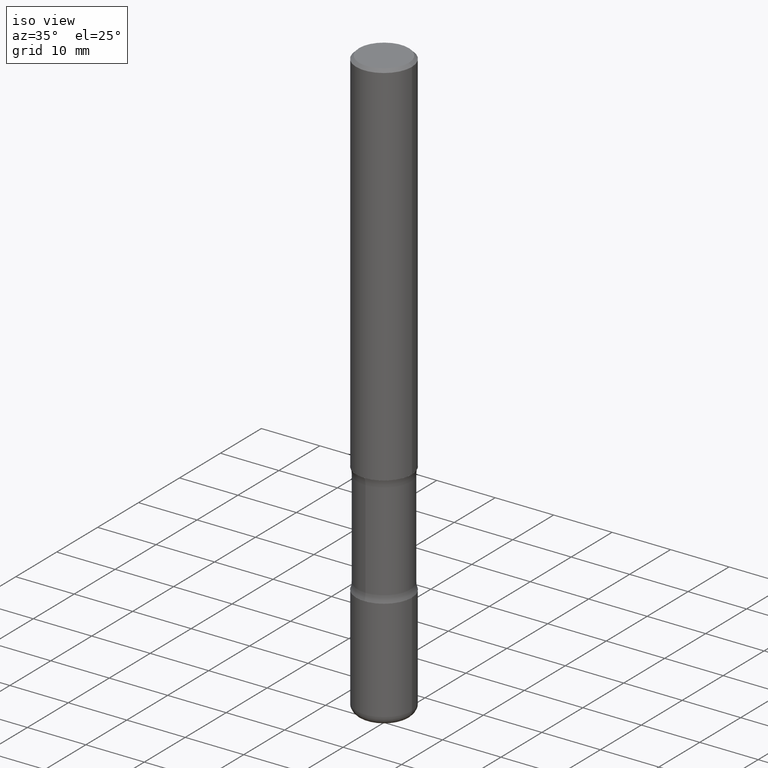
[diagram: clean part render]
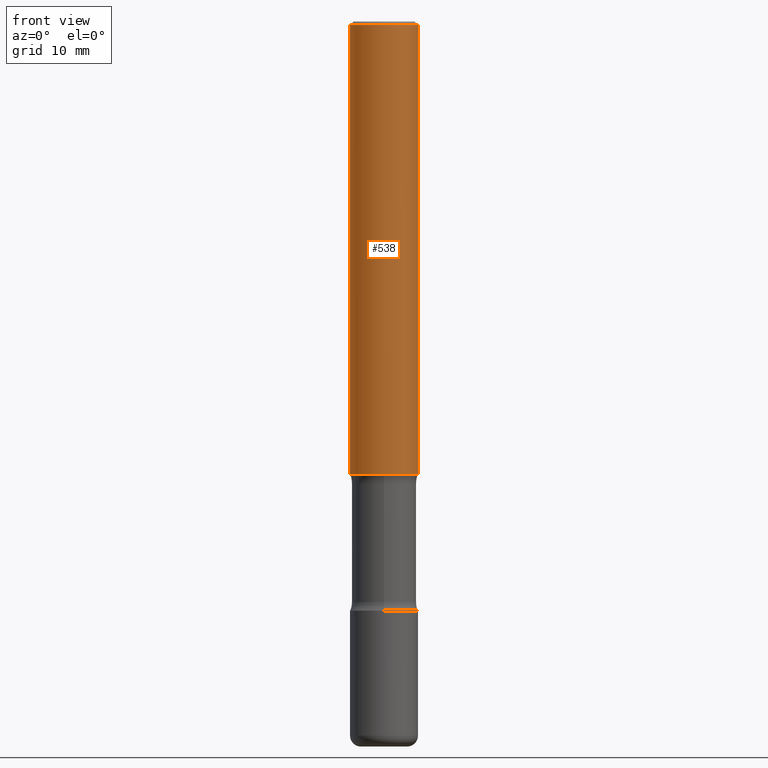
[diagram: tour spotlight — one face highlighted and labeled with its STEP entity id]
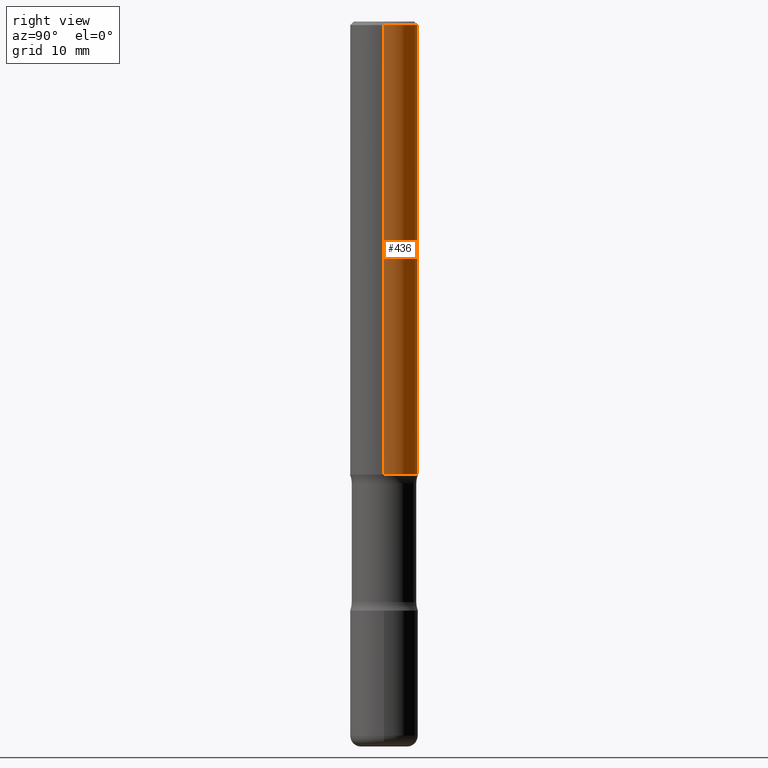
[diagram: tour spotlight — one face highlighted and labeled with its STEP entity id]
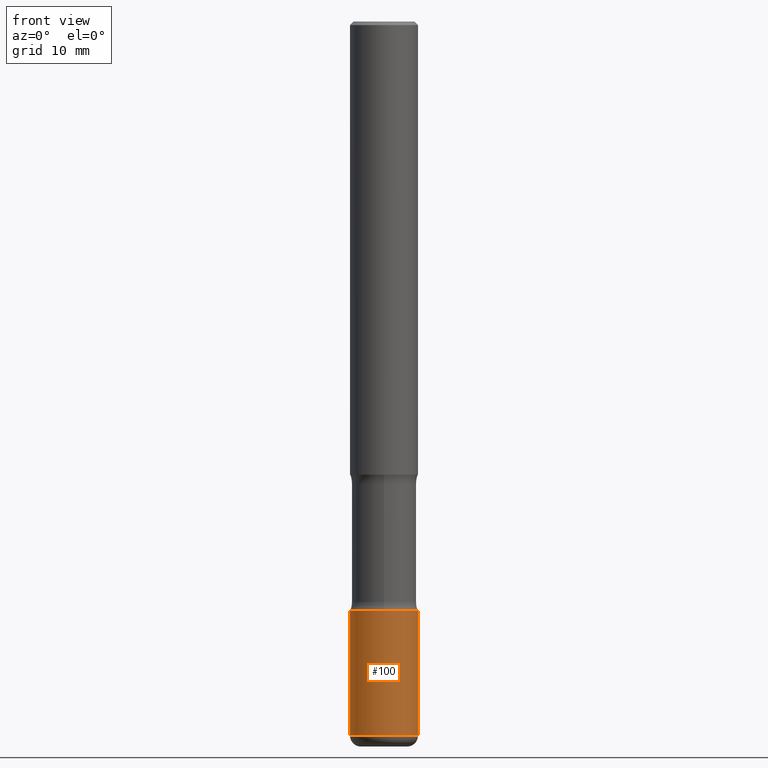
[diagram: tour spotlight — one face highlighted and labeled with its STEP entity id]
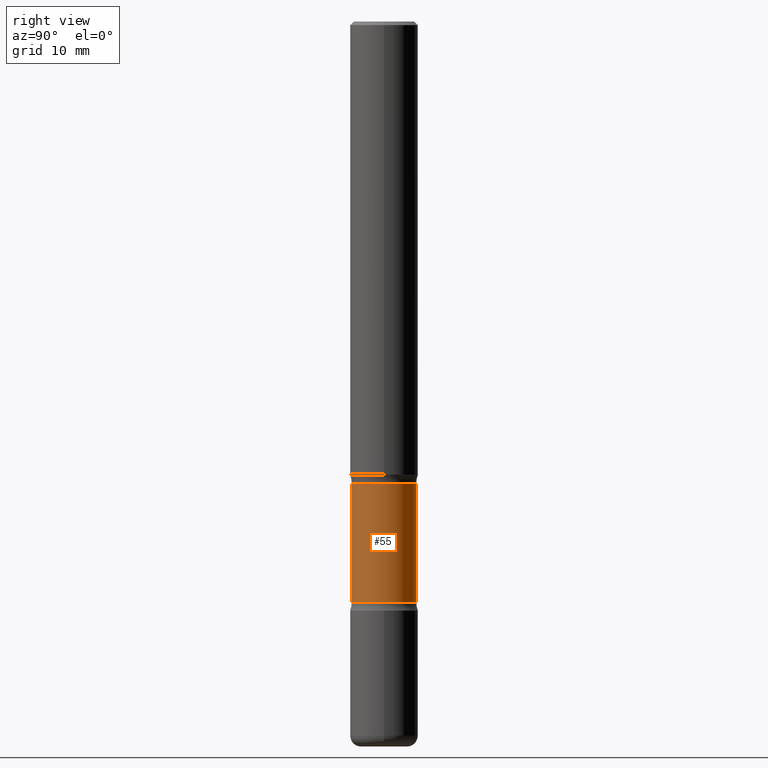
[diagram: tour spotlight — one face highlighted and labeled with its STEP entity id]
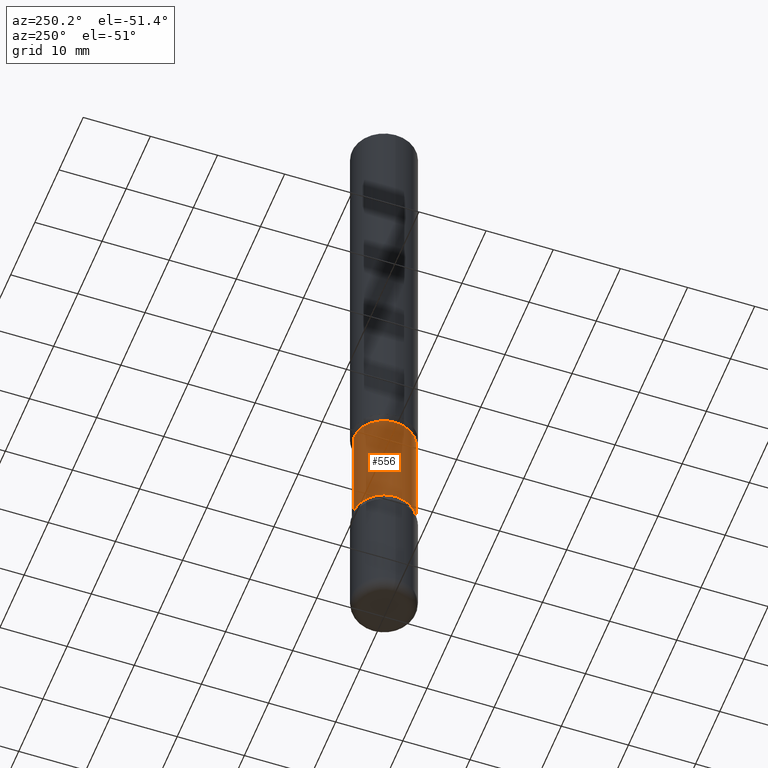
[diagram: tour spotlight — one face highlighted and labeled with its STEP entity id]
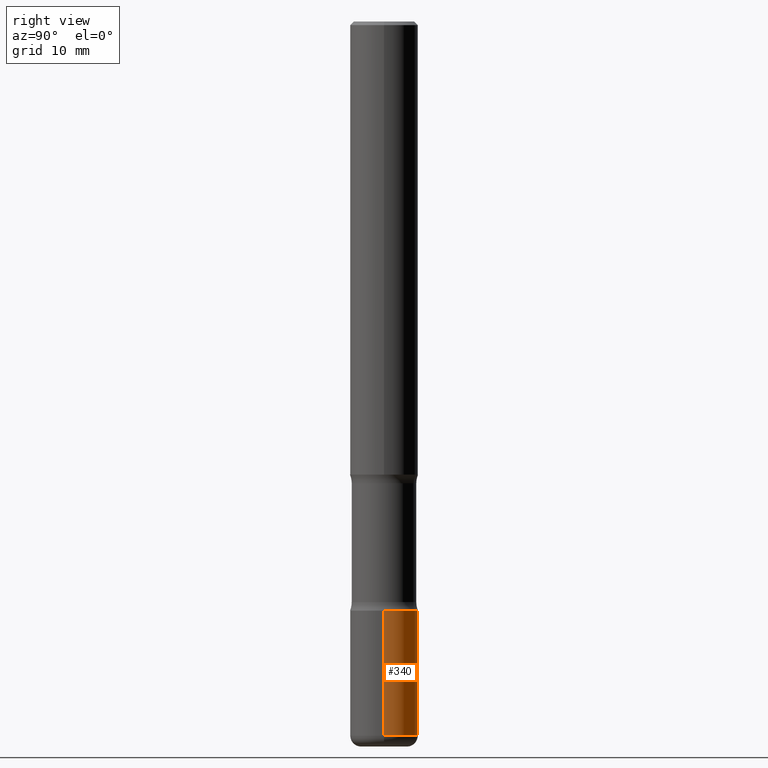
[diagram: tour spotlight — one face highlighted and labeled with its STEP entity id]
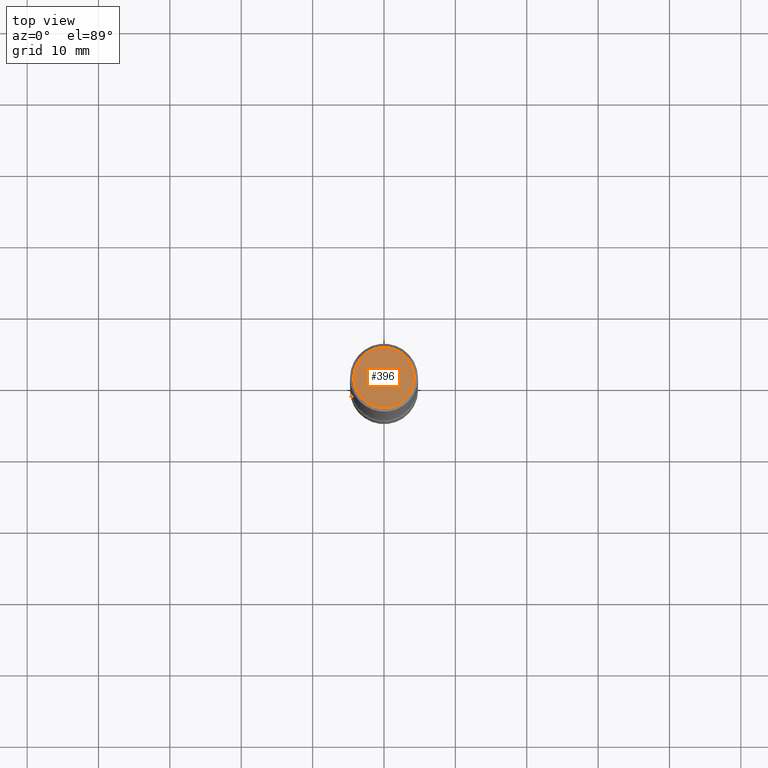
[diagram: tour spotlight — one face highlighted and labeled with its STEP entity id]
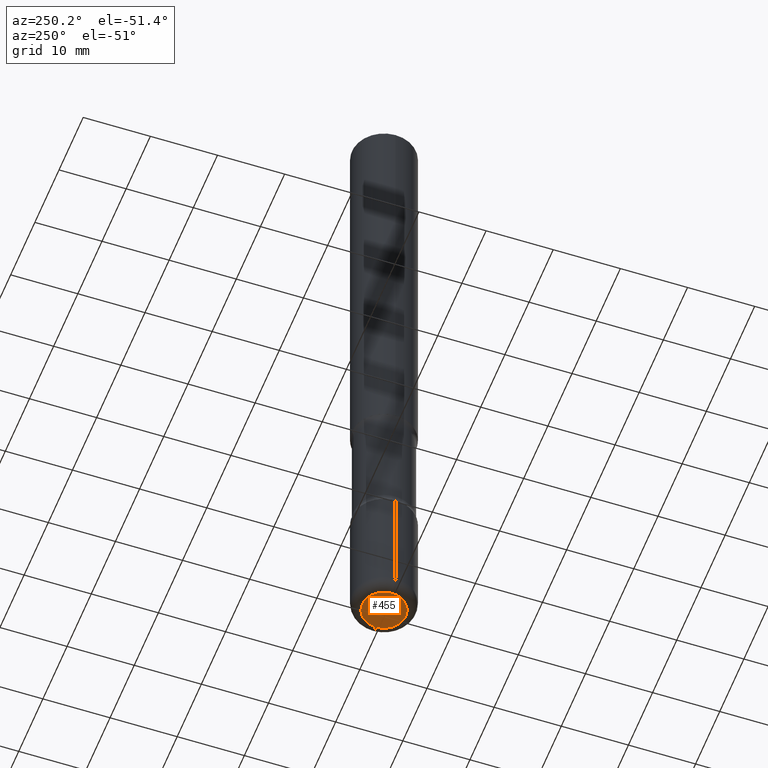
[diagram: tour spotlight — one face highlighted and labeled with its STEP entity id]
A machine part: a face-by-face anatomy tour. The part has 20 B-rep faces; the first image is the clean iso view, then the 8 largest visible faces are spotlighted one at a time (largest first), each with its STEP entity span.

Face 1 — front view, entity #538. In plain terms, the highlighted cylindrical surface (edge-blend (fillet) strip) has radius 4.7625 mm, axis along (-0, 0, 1).
Definition (entity closure, byte-faithful):
#11 = CARTESIAN_POINT ( 'NONE',  ( 0.1875000000000000278, -1.309305502066175008E-15, 9.142831454617381013E-30 ) ) ;
#18 = ORIENTED_EDGE ( 'NONE', *, *, #34, .F. ) ;
#34 = EDGE_CURVE ( 'NONE', #316, #446, #451, .T. ) ;
#43 = DIRECTION ( 'NONE',  ( -2.445468806185136597E-29, 3.491481338843145583E-15, 1.000000000000000000 ) ) ;
#49 = ORIENTED_EDGE ( 'NONE', *, *, #352, .T. ) ;
#68 = CARTESIAN_POINT ( 'NONE',  ( 0.1875000000000001110, -1.003800884917403995E-14, -2.500000000000000000 ) ) ;
#70 = VECTOR ( 'NONE', #527, 39.37007874015748143 ) ;
#90 = EDGE_LOOP ( 'NONE', ( #18, #437, #49, #448 ) ) ;
#123 = FACE_OUTER_BOUND ( 'NONE', #90, .T. ) ;
#131 = EDGE_CURVE ( 'NONE', #446, #322, #490, .T. ) ;
#178 = CYLINDRICAL_SURFACE ( 'NONE', #535, 0.1875000000000000278 ) ;
#187 = CARTESIAN_POINT ( 'NONE',  ( 0.1874999999999999167, -1.356173001359024677E-15, -0.02000000000000006981 ) ) ;
#197 = AXIS2_PLACEMENT_3D ( 'NONE', #374, #464, #258 ) ;
#231 = LINE ( 'NONE', #11, #70 ) ;
#235 = CARTESIAN_POINT ( 'NONE',  ( 6.113672015462842613E-29, -8.728703347107864943E-15, -2.500000000000000000 ) ) ;
#239 = CARTESIAN_POINT ( 'NONE',  ( -0.1875000000000000278, 1.332267629550188046E-15, -9.223003294227947991E-30 ) ) ;
#248 = CARTESIAN_POINT ( 'NONE',  ( -0.1874999999999999167, 1.239475875289311118E-15, -0.02000000000000006981 ) ) ;
#258 = DIRECTION ( 'NONE',  ( 1.000000000000000000, -6.982962677686265922E-15, 0.000000000000000000 ) ) ;
#261 = DIRECTION ( 'NONE',  ( 1.000000000000000000, -6.982962677686263555E-15, 0.000000000000000000 ) ) ;
#263 = DIRECTION ( 'NONE',  ( 1.000000000000000000, -6.982962677686265922E-15, 4.876176775795935793E-29 ) ) ;
#297 = AXIS2_PLACEMENT_3D ( 'NONE', #235, #43, #261 ) ;
#299 = DIRECTION ( 'NONE',  ( -2.445468806185136597E-29, 3.491481338843145583E-15, 1.000000000000000000 ) ) ;
#304 = EDGE_CURVE ( 'NONE', #316, #485, #507, .T. ) ;
#316 = VERTEX_POINT ( 'NONE', #359 ) ;
#322 = VERTEX_POINT ( 'NONE', #187 ) ;
#341 = CARTESIAN_POINT ( 'NONE',  ( 0.000000000000000000, 0.000000000000000000, 0.000000000000000000 ) ) ;
#352 = EDGE_CURVE ( 'NONE', #485, #322, #231, .T. ) ;
#359 = CARTESIAN_POINT ( 'NONE',  ( -0.1875000000000000833, -3.066998857392172722E-15, -2.500000000000000000 ) ) ;
#363 = DIRECTION ( 'NONE',  ( -2.445468806185136877E-29, 3.491481338843145188E-15, 1.000000000000000000 ) ) ;
#374 = CARTESIAN_POINT ( 'NONE',  ( 4.890937612370289799E-31, -6.982962677686315028E-17, -0.02000000000000006981 ) ) ;
#411 = VECTOR ( 'NONE', #363, 39.37007874015748143 ) ;
#437 = ORIENTED_EDGE ( 'NONE', *, *, #304, .T. ) ;
#446 = VERTEX_POINT ( 'NONE', #248 ) ;
#448 = ORIENTED_EDGE ( 'NONE', *, *, #131, .F. ) ;
#451 = LINE ( 'NONE', #239, #411 ) ;
#464 = DIRECTION ( 'NONE',  ( -2.445468806185136597E-29, 3.491481338843145583E-15, 1.000000000000000000 ) ) ;
#485 = VERTEX_POINT ( 'NONE', #68 ) ;
#490 = CIRCLE ( 'NONE', #197, 0.1874999999999999167 ) ;
#507 = CIRCLE ( 'NONE', #297, 0.1875000000000001110 ) ;
#527 = DIRECTION ( 'NONE',  ( -2.445468806185136877E-29, 3.491481338843145188E-15, 1.000000000000000000 ) ) ;
#535 = AXIS2_PLACEMENT_3D ( 'NONE', #341, #299, #263 ) ;
#538 = ADVANCED_FACE ( 'NONE', ( #123 ), #178, .T. ) ;

Face 2 — right view, entity #436. In plain terms, the highlighted cylindrical surface (edge-blend (fillet) strip) has radius 4.7625 mm, axis along (-0, 0, 1).
Definition (entity closure, byte-faithful):
#11 = CARTESIAN_POINT ( 'NONE',  ( 0.1875000000000000278, -1.309305502066175008E-15, 9.142831454617381013E-30 ) ) ;
#20 = EDGE_CURVE ( 'NONE', #485, #316, #93, .T. ) ;
#21 = EDGE_LOOP ( 'NONE', ( #264, #350, #227, #278 ) ) ;
#31 = CARTESIAN_POINT ( 'NONE',  ( 4.890937612370289799E-31, -6.982962677686315028E-17, -0.02000000000000006981 ) ) ;
#34 = EDGE_CURVE ( 'NONE', #316, #446, #451, .T. ) ;
#58 = AXIS2_PLACEMENT_3D ( 'NONE', #250, #112, #356 ) ;
#66 = CARTESIAN_POINT ( 'NONE',  ( 0.000000000000000000, 0.000000000000000000, 0.000000000000000000 ) ) ;
#68 = CARTESIAN_POINT ( 'NONE',  ( 0.1875000000000001110, -1.003800884917403995E-14, -2.500000000000000000 ) ) ;
#70 = VECTOR ( 'NONE', #527, 39.37007874015748143 ) ;
#93 = CIRCLE ( 'NONE', #58, 0.1875000000000001110 ) ;
#112 = DIRECTION ( 'NONE',  ( -2.445468806185136597E-29, 3.491481338843145583E-15, 1.000000000000000000 ) ) ;
#128 = CIRCLE ( 'NONE', #287, 0.1874999999999999167 ) ;
#155 = DIRECTION ( 'NONE',  ( 1.000000000000000000, -6.982962677686265922E-15, 4.876176775795935793E-29 ) ) ;
#160 = DIRECTION ( 'NONE',  ( 1.000000000000000000, -6.982962677686265922E-15, 0.000000000000000000 ) ) ;
#187 = CARTESIAN_POINT ( 'NONE',  ( 0.1874999999999999167, -1.356173001359024677E-15, -0.02000000000000006981 ) ) ;
#196 = DIRECTION ( 'NONE',  ( -2.445468806185136597E-29, 3.491481338843145583E-15, 1.000000000000000000 ) ) ;
#227 = ORIENTED_EDGE ( 'NONE', *, *, #449, .F. ) ;
#231 = LINE ( 'NONE', #11, #70 ) ;
#239 = CARTESIAN_POINT ( 'NONE',  ( -0.1875000000000000278, 1.332267629550188046E-15, -9.223003294227947991E-30 ) ) ;
#241 = DIRECTION ( 'NONE',  ( -2.445468806185136597E-29, 3.491481338843145583E-15, 1.000000000000000000 ) ) ;
#248 = CARTESIAN_POINT ( 'NONE',  ( -0.1874999999999999167, 1.239475875289311118E-15, -0.02000000000000006981 ) ) ;
#250 = CARTESIAN_POINT ( 'NONE',  ( 6.113672015462842613E-29, -8.728703347107864943E-15, -2.500000000000000000 ) ) ;
#264 = ORIENTED_EDGE ( 'NONE', *, *, #20, .T. ) ;
#278 = ORIENTED_EDGE ( 'NONE', *, *, #352, .F. ) ;
#279 = AXIS2_PLACEMENT_3D ( 'NONE', #66, #196, #155 ) ;
#287 = AXIS2_PLACEMENT_3D ( 'NONE', #31, #241, #160 ) ;
#290 = CYLINDRICAL_SURFACE ( 'NONE', #279, 0.1875000000000000278 ) ;
#292 = FACE_OUTER_BOUND ( 'NONE', #21, .T. ) ;
#316 = VERTEX_POINT ( 'NONE', #359 ) ;
#322 = VERTEX_POINT ( 'NONE', #187 ) ;
#350 = ORIENTED_EDGE ( 'NONE', *, *, #34, .T. ) ;
#352 = EDGE_CURVE ( 'NONE', #485, #322, #231, .T. ) ;
#356 = DIRECTION ( 'NONE',  ( 1.000000000000000000, -6.982962677686263555E-15, 0.000000000000000000 ) ) ;
#359 = CARTESIAN_POINT ( 'NONE',  ( -0.1875000000000000833, -3.066998857392172722E-15, -2.500000000000000000 ) ) ;
#363 = DIRECTION ( 'NONE',  ( -2.445468806185136877E-29, 3.491481338843145188E-15, 1.000000000000000000 ) ) ;
#411 = VECTOR ( 'NONE', #363, 39.37007874015748143 ) ;
#436 = ADVANCED_FACE ( 'NONE', ( #292 ), #290, .T. ) ;
#446 = VERTEX_POINT ( 'NONE', #248 ) ;
#449 = EDGE_CURVE ( 'NONE', #322, #446, #128, .T. ) ;
#451 = LINE ( 'NONE', #239, #411 ) ;
#485 = VERTEX_POINT ( 'NONE', #68 ) ;
#527 = DIRECTION ( 'NONE',  ( -2.445468806185136877E-29, 3.491481338843145188E-15, 1.000000000000000000 ) ) ;

Face 3 — front view, entity #100. In plain terms, the highlighted cylindrical surface (edge-blend (fillet) strip) has radius 4.7625 mm, axis along (-0, 0, 1).
Definition (entity closure, byte-faithful):
#16 = EDGE_LOOP ( 'NONE', ( #494, #25, #151, #400 ) ) ;
#25 = ORIENTED_EDGE ( 'NONE', *, *, #182, .T. ) ;
#27 = DIRECTION ( 'NONE',  ( 1.000000000000000000, -6.982962677686267499E-15, 0.000000000000000000 ) ) ;
#72 = CARTESIAN_POINT ( 'NONE',  ( 0.1875000000000001110, -1.506574197710817060E-14, -3.939999999999999947 ) ) ;
#75 = DIRECTION ( 'NONE',  ( 1.000000000000000000, -6.982962677686266711E-15, 4.876176775795935793E-29 ) ) ;
#81 = DIRECTION ( 'NONE',  ( -2.445468806185136597E-29, 3.491481338843145583E-15, 1.000000000000000000 ) ) ;
#100 = ADVANCED_FACE ( 'NONE', ( #124 ), #293, .T. ) ;
#124 = FACE_OUTER_BOUND ( 'NONE', #16, .T. ) ;
#139 = EDGE_CURVE ( 'NONE', #492, #306, #548, .T. ) ;
#143 = EDGE_CURVE ( 'NONE', #306, #517, #501, .T. ) ;
#151 = ORIENTED_EDGE ( 'NONE', *, *, #249, .T. ) ;
#157 = CARTESIAN_POINT ( 'NONE',  ( -0.1875000000000001110, -1.242416884549180617E-14, -3.939999999999999947 ) ) ;
#170 = DIRECTION ( 'NONE',  ( -2.445468806185136877E-29, 3.491481338843145188E-15, 1.000000000000000000 ) ) ;
#182 = EDGE_CURVE ( 'NONE', #492, #531, #307, .T. ) ;
#185 = CARTESIAN_POINT ( 'NONE',  ( 0.1875000000000001110, -1.309305502066175797E-15, 9.142831454617385217E-30 ) ) ;
#189 = VECTOR ( 'NONE', #170, 39.37007874015748143 ) ;
#208 = AXIS2_PLACEMENT_3D ( 'NONE', #209, #81, #75 ) ;
#209 = CARTESIAN_POINT ( 'NONE',  ( 0.000000000000000000, 0.000000000000000000, 0.000000000000000000 ) ) ;
#225 = AXIS2_PLACEMENT_3D ( 'NONE', #379, #510, #291 ) ;
#228 = LINE ( 'NONE', #185, #372 ) ;
#249 = EDGE_CURVE ( 'NONE', #531, #517, #228, .T. ) ;
#291 = DIRECTION ( 'NONE',  ( 1.000000000000000000, -6.982962677686269866E-15, 0.000000000000000000 ) ) ;
#293 = CYLINDRICAL_SURFACE ( 'NONE', #208, 0.1875000000000001110 ) ;
#306 = VERTEX_POINT ( 'NONE', #488 ) ;
#307 = CIRCLE ( 'NONE', #434, 0.1875000000000001388 ) ;
#329 = CARTESIAN_POINT ( 'NONE',  ( -0.1875000000000001110, 1.332267629550188637E-15, -9.223003294227953596E-30 ) ) ;
#372 = VECTOR ( 'NONE', #520, 39.37007874015748143 ) ;
#379 = CARTESIAN_POINT ( 'NONE',  ( 7.947773620101696182E-29, -1.134731435124022600E-14, -3.250000000000000444 ) ) ;
#400 = ORIENTED_EDGE ( 'NONE', *, *, #143, .F. ) ;
#424 = CARTESIAN_POINT ( 'NONE',  ( 9.635147096369438236E-29, -1.375643647504199401E-14, -3.939999999999999947 ) ) ;
#434 = AXIS2_PLACEMENT_3D ( 'NONE', #424, #546, #27 ) ;
#488 = CARTESIAN_POINT ( 'NONE',  ( -0.1875000000000000833, -1.121960778359092137E-14, -3.250000000000000444 ) ) ;
#492 = VERTEX_POINT ( 'NONE', #157 ) ;
#494 = ORIENTED_EDGE ( 'NONE', *, *, #139, .F. ) ;
#501 = CIRCLE ( 'NONE', #225, 0.1875000000000000833 ) ;
#510 = DIRECTION ( 'NONE',  ( -2.445468806185136597E-29, 3.491481338843145583E-15, 1.000000000000000000 ) ) ;
#517 = VERTEX_POINT ( 'NONE', #539 ) ;
#520 = DIRECTION ( 'NONE',  ( -2.445468806185136877E-29, 3.491481338843145188E-15, 1.000000000000000000 ) ) ;
#531 = VERTEX_POINT ( 'NONE', #72 ) ;
#539 = CARTESIAN_POINT ( 'NONE',  ( 0.1875000000000000833, -1.265661985330640259E-14, -3.250000000000000444 ) ) ;
#546 = DIRECTION ( 'NONE',  ( -2.445468806185136597E-29, 3.491481338843145583E-15, 1.000000000000000000 ) ) ;
#548 = LINE ( 'NONE', #329, #189 ) ;

Face 4 — right view, entity #55. In plain terms, the highlighted cylindrical surface (edge-blend (fillet) strip) has radius 4.5244 mm, axis along (0, -0, -1).
Definition (entity closure, byte-faithful):
#17 = CARTESIAN_POINT ( 'NONE',  ( 6.150289227201164007E-29, -9.008429421428009851E-15, -2.547495887979908780 ) ) ;
#39 = DIRECTION ( 'NONE',  ( 6.982962677686266711E-15, 1.000000000000000000, -3.067338098149349089E-15 ) ) ;
#55 = ADVANCED_FACE ( 'NONE', ( #133 ), #381, .T. ) ;
#77 = EDGE_CURVE ( 'NONE', #497, #180, #122, .T. ) ;
#95 = ORIENTED_EDGE ( 'NONE', *, *, #512, .F. ) ;
#111 = CARTESIAN_POINT ( 'NONE',  ( 7.826246762236988201E-29, -1.118918372292999451E-14, -3.202504112020091664 ) ) ;
#118 = AXIS2_PLACEMENT_3D ( 'NONE', #296, #173, #39 ) ;
#122 = LINE ( 'NONE', #212, #401 ) ;
#133 = FACE_OUTER_BOUND ( 'NONE', #269, .T. ) ;
#141 = CARTESIAN_POINT ( 'NONE',  ( 1.243840226962943961E-15, 0.1781249999999887368, -3.202504112020092553 ) ) ;
#172 = CARTESIAN_POINT ( 'NONE',  ( 1.243840226962964471E-15, 0.1781249999999861278, -4.000000000000000888 ) ) ;
#173 = DIRECTION ( 'NONE',  ( 2.558681667686983511E-29, -3.329354077496592524E-15, -1.000000000000000000 ) ) ;
#180 = VERTEX_POINT ( 'NONE', #550 ) ;
#194 = DIRECTION ( 'NONE',  ( 2.558681667686983511E-29, -3.329354077496592524E-15, -1.000000000000000000 ) ) ;
#199 = VECTOR ( 'NONE', #465, 39.37007874015748143 ) ;
#212 = CARTESIAN_POINT ( 'NONE',  ( -1.222026205852954821E-15, -0.1781250000000138001, -3.999999999999999556 ) ) ;
#243 = CARTESIAN_POINT ( 'NONE',  ( -1.254184790217547253E-15, -0.1781250000000089706, -2.547495887979908336 ) ) ;
#269 = EDGE_LOOP ( 'NONE', ( #388, #407, #95, #280 ) ) ;
#275 = DIRECTION ( 'NONE',  ( 6.982962677686266711E-15, 1.000000000000000000, -3.067338098149349089E-15 ) ) ;
#280 = ORIENTED_EDGE ( 'NONE', *, *, #549, .F. ) ;
#281 = DIRECTION ( 'NONE',  ( 2.558681667686983511E-29, -3.329354077496592524E-15, -1.000000000000000000 ) ) ;
#296 = CARTESIAN_POINT ( 'NONE',  ( 9.866784870866931853E-29, -1.384432990936266734E-14, -4.000000000000000000 ) ) ;
#308 = VERTEX_POINT ( 'NONE', #141 ) ;
#327 = CIRCLE ( 'NONE', #534, 0.1781249999999999500 ) ;
#343 = EDGE_CURVE ( 'NONE', #513, #497, #327, .T. ) ;
#381 = CYLINDRICAL_SURFACE ( 'NONE', #118, 0.1781249999999999500 ) ;
#386 = LINE ( 'NONE', #172, #199 ) ;
#388 = ORIENTED_EDGE ( 'NONE', *, *, #343, .T. ) ;
#401 = VECTOR ( 'NONE', #458, 39.37007874015748143 ) ;
#407 = ORIENTED_EDGE ( 'NONE', *, *, #77, .T. ) ;
#412 = CARTESIAN_POINT ( 'NONE',  ( 1.243840226962927197E-15, 0.1781249999999909572, -2.547495887979909224 ) ) ;
#458 = DIRECTION ( 'NONE',  ( 2.558681667686983511E-29, -3.329354077496592524E-15, -1.000000000000000000 ) ) ;
#463 = AXIS2_PLACEMENT_3D ( 'NONE', #111, #281, #503 ) ;
#465 = DIRECTION ( 'NONE',  ( 2.558681667686983511E-29, -3.329354077496592524E-15, -1.000000000000000000 ) ) ;
#474 = CIRCLE ( 'NONE', #463, 0.1781249999999999223 ) ;
#497 = VERTEX_POINT ( 'NONE', #243 ) ;
#503 = DIRECTION ( 'NONE',  ( 6.982962677686265133E-15, 1.000000000000000000, -3.067338098149349483E-15 ) ) ;
#512 = EDGE_CURVE ( 'NONE', #308, #180, #474, .T. ) ;
#513 = VERTEX_POINT ( 'NONE', #412 ) ;
#534 = AXIS2_PLACEMENT_3D ( 'NONE', #17, #194, #275 ) ;
#549 = EDGE_CURVE ( 'NONE', #513, #308, #386, .T. ) ;
#550 = CARTESIAN_POINT ( 'NONE',  ( -1.254184790217529307E-15, -0.1781250000000111355, -3.202504112020091220 ) ) ;

Face 5 — auxiliary view, entity #556. In plain terms, the highlighted cylindrical surface (edge-blend (fillet) strip) has radius 4.5244 mm, axis along (0, -0, -1).
Definition (entity closure, byte-faithful):
#47 = CIRCLE ( 'NONE', #382, 0.1781249999999999500 ) ;
#77 = EDGE_CURVE ( 'NONE', #497, #180, #122, .T. ) ;
#80 = DIRECTION ( 'NONE',  ( 6.982962677686266711E-15, 1.000000000000000000, -3.067338098149349089E-15 ) ) ;
#89 = EDGE_LOOP ( 'NONE', ( #117, #237, #247, #274 ) ) ;
#108 = AXIS2_PLACEMENT_3D ( 'NONE', #265, #294, #80 ) ;
#117 = ORIENTED_EDGE ( 'NONE', *, *, #77, .F. ) ;
#122 = LINE ( 'NONE', #212, #401 ) ;
#134 = FACE_OUTER_BOUND ( 'NONE', #89, .T. ) ;
#136 = AXIS2_PLACEMENT_3D ( 'NONE', #532, #351, #192 ) ;
#141 = CARTESIAN_POINT ( 'NONE',  ( 1.243840226962943961E-15, 0.1781249999999887368, -3.202504112020092553 ) ) ;
#145 = CIRCLE ( 'NONE', #136, 0.1781249999999999223 ) ;
#159 = EDGE_CURVE ( 'NONE', #497, #513, #47, .T. ) ;
#168 = DIRECTION ( 'NONE',  ( 6.982962677686266711E-15, 1.000000000000000000, -3.067338098149349089E-15 ) ) ;
#172 = CARTESIAN_POINT ( 'NONE',  ( 1.243840226962964471E-15, 0.1781249999999861278, -4.000000000000000888 ) ) ;
#180 = VERTEX_POINT ( 'NONE', #550 ) ;
#192 = DIRECTION ( 'NONE',  ( 6.982962677686265133E-15, 1.000000000000000000, -3.067338098149349483E-15 ) ) ;
#199 = VECTOR ( 'NONE', #465, 39.37007874015748143 ) ;
#212 = CARTESIAN_POINT ( 'NONE',  ( -1.222026205852954821E-15, -0.1781250000000138001, -3.999999999999999556 ) ) ;
#237 = ORIENTED_EDGE ( 'NONE', *, *, #159, .T. ) ;
#243 = CARTESIAN_POINT ( 'NONE',  ( -1.254184790217547253E-15, -0.1781250000000089706, -2.547495887979908336 ) ) ;
#247 = ORIENTED_EDGE ( 'NONE', *, *, #549, .T. ) ;
#252 = CARTESIAN_POINT ( 'NONE',  ( 6.150289227201164007E-29, -9.008429421428009851E-15, -2.547495887979908780 ) ) ;
#260 = EDGE_CURVE ( 'NONE', #180, #308, #145, .T. ) ;
#265 = CARTESIAN_POINT ( 'NONE',  ( 9.866784870866931853E-29, -1.384432990936266734E-14, -4.000000000000000000 ) ) ;
#274 = ORIENTED_EDGE ( 'NONE', *, *, #260, .F. ) ;
#294 = DIRECTION ( 'NONE',  ( 2.558681667686983511E-29, -3.329354077496592524E-15, -1.000000000000000000 ) ) ;
#300 = DIRECTION ( 'NONE',  ( 2.558681667686983511E-29, -3.329354077496592524E-15, -1.000000000000000000 ) ) ;
#308 = VERTEX_POINT ( 'NONE', #141 ) ;
#351 = DIRECTION ( 'NONE',  ( 2.558681667686983511E-29, -3.329354077496592524E-15, -1.000000000000000000 ) ) ;
#382 = AXIS2_PLACEMENT_3D ( 'NONE', #252, #300, #168 ) ;
#386 = LINE ( 'NONE', #172, #199 ) ;
#401 = VECTOR ( 'NONE', #458, 39.37007874015748143 ) ;
#412 = CARTESIAN_POINT ( 'NONE',  ( 1.243840226962927197E-15, 0.1781249999999909572, -2.547495887979909224 ) ) ;
#458 = DIRECTION ( 'NONE',  ( 2.558681667686983511E-29, -3.329354077496592524E-15, -1.000000000000000000 ) ) ;
#465 = DIRECTION ( 'NONE',  ( 2.558681667686983511E-29, -3.329354077496592524E-15, -1.000000000000000000 ) ) ;
#497 = VERTEX_POINT ( 'NONE', #243 ) ;
#513 = VERTEX_POINT ( 'NONE', #412 ) ;
#532 = CARTESIAN_POINT ( 'NONE',  ( 7.826246762236988201E-29, -1.118918372292999451E-14, -3.202504112020091664 ) ) ;
#549 = EDGE_CURVE ( 'NONE', #513, #308, #386, .T. ) ;
#550 = CARTESIAN_POINT ( 'NONE',  ( -1.254184790217529307E-15, -0.1781250000000111355, -3.202504112020091220 ) ) ;
#552 = CYLINDRICAL_SURFACE ( 'NONE', #108, 0.1781249999999999500 ) ;
#556 = ADVANCED_FACE ( 'NONE', ( #134 ), #552, .T. ) ;

Face 6 — right view, entity #340. In plain terms, the highlighted cylindrical surface (edge-blend (fillet) strip) has radius 4.7625 mm, axis along (-0, 0, 1).
Definition (entity closure, byte-faithful):
#1 = AXIS2_PLACEMENT_3D ( 'NONE', #51, #486, #481 ) ;
#48 = AXIS2_PLACEMENT_3D ( 'NONE', #459, #167, #332 ) ;
#51 = CARTESIAN_POINT ( 'NONE',  ( 7.947773620101696182E-29, -1.134731435124022600E-14, -3.250000000000000444 ) ) ;
#72 = CARTESIAN_POINT ( 'NONE',  ( 0.1875000000000001110, -1.506574197710817060E-14, -3.939999999999999947 ) ) ;
#97 = CARTESIAN_POINT ( 'NONE',  ( 0.000000000000000000, 0.000000000000000000, 0.000000000000000000 ) ) ;
#139 = EDGE_CURVE ( 'NONE', #492, #306, #548, .T. ) ;
#144 = FACE_OUTER_BOUND ( 'NONE', #559, .T. ) ;
#147 = DIRECTION ( 'NONE',  ( -2.445468806185136597E-29, 3.491481338843145583E-15, 1.000000000000000000 ) ) ;
#157 = CARTESIAN_POINT ( 'NONE',  ( -0.1875000000000001110, -1.242416884549180617E-14, -3.939999999999999947 ) ) ;
#167 = DIRECTION ( 'NONE',  ( -2.445468806185136597E-29, 3.491481338843145583E-15, 1.000000000000000000 ) ) ;
#170 = DIRECTION ( 'NONE',  ( -2.445468806185136877E-29, 3.491481338843145188E-15, 1.000000000000000000 ) ) ;
#185 = CARTESIAN_POINT ( 'NONE',  ( 0.1875000000000001110, -1.309305502066175797E-15, 9.142831454617385217E-30 ) ) ;
#189 = VECTOR ( 'NONE', #170, 39.37007874015748143 ) ;
#228 = LINE ( 'NONE', #185, #372 ) ;
#240 = EDGE_CURVE ( 'NONE', #517, #306, #421, .T. ) ;
#249 = EDGE_CURVE ( 'NONE', #531, #517, #228, .T. ) ;
#276 = ORIENTED_EDGE ( 'NONE', *, *, #139, .T. ) ;
#306 = VERTEX_POINT ( 'NONE', #488 ) ;
#329 = CARTESIAN_POINT ( 'NONE',  ( -0.1875000000000001110, 1.332267629550188637E-15, -9.223003294227953596E-30 ) ) ;
#332 = DIRECTION ( 'NONE',  ( 1.000000000000000000, -6.982962677686267499E-15, 0.000000000000000000 ) ) ;
#340 = ADVANCED_FACE ( 'NONE', ( #144 ), #484, .T. ) ;
#360 = ORIENTED_EDGE ( 'NONE', *, *, #240, .F. ) ;
#367 = ORIENTED_EDGE ( 'NONE', *, *, #249, .F. ) ;
#372 = VECTOR ( 'NONE', #520, 39.37007874015748143 ) ;
#406 = DIRECTION ( 'NONE',  ( 1.000000000000000000, -6.982962677686266711E-15, 4.876176775795935793E-29 ) ) ;
#421 = CIRCLE ( 'NONE', #1, 0.1875000000000000833 ) ;
#459 = CARTESIAN_POINT ( 'NONE',  ( 9.635147096369438236E-29, -1.375643647504199401E-14, -3.939999999999999947 ) ) ;
#475 = ORIENTED_EDGE ( 'NONE', *, *, #495, .T. ) ;
#481 = DIRECTION ( 'NONE',  ( 1.000000000000000000, -6.982962677686269866E-15, 0.000000000000000000 ) ) ;
#483 = AXIS2_PLACEMENT_3D ( 'NONE', #97, #147, #406 ) ;
#484 = CYLINDRICAL_SURFACE ( 'NONE', #483, 0.1875000000000001110 ) ;
#486 = DIRECTION ( 'NONE',  ( -2.445468806185136597E-29, 3.491481338843145583E-15, 1.000000000000000000 ) ) ;
#488 = CARTESIAN_POINT ( 'NONE',  ( -0.1875000000000000833, -1.121960778359092137E-14, -3.250000000000000444 ) ) ;
#492 = VERTEX_POINT ( 'NONE', #157 ) ;
#495 = EDGE_CURVE ( 'NONE', #531, #492, #526, .T. ) ;
#517 = VERTEX_POINT ( 'NONE', #539 ) ;
#520 = DIRECTION ( 'NONE',  ( -2.445468806185136877E-29, 3.491481338843145188E-15, 1.000000000000000000 ) ) ;
#526 = CIRCLE ( 'NONE', #48, 0.1875000000000001388 ) ;
#531 = VERTEX_POINT ( 'NONE', #72 ) ;
#539 = CARTESIAN_POINT ( 'NONE',  ( 0.1875000000000000833, -1.265661985330640259E-14, -3.250000000000000444 ) ) ;
#548 = LINE ( 'NONE', #329, #189 ) ;
#559 = EDGE_LOOP ( 'NONE', ( #475, #276, #360, #367 ) ) ;

Face 7 — top view, entity #396. In plain terms, the highlighted planar face has unit normal (0, -0, -1).
Definition (entity closure, byte-faithful):
#61 = AXIS2_PLACEMENT_3D ( 'NONE', #330, #496, #115 ) ;
#105 = CIRCLE ( 'NONE', #543, 0.1674999999999998990 ) ;
#109 = EDGE_CURVE ( 'NONE', #440, #345, #105, .T. ) ;
#113 = FACE_OUTER_BOUND ( 'NONE', #242, .T. ) ;
#115 = DIRECTION ( 'NONE',  ( 1.000000000000000000, -6.982962677686265922E-15, 4.876176775795935793E-29 ) ) ;
#204 = DIRECTION ( 'NONE',  ( -1.000000000000000000, 6.982962677686265922E-15, -4.876176775795935793E-29 ) ) ;
#242 = EDGE_LOOP ( 'NONE', ( #533, #540 ) ) ;
#245 = AXIS2_PLACEMENT_3D ( 'NONE', #453, #447, #204 ) ;
#330 = CARTESIAN_POINT ( 'NONE',  ( 0.000000000000000000, 0.000000000000000000, 0.000000000000000000 ) ) ;
#345 = VERTEX_POINT ( 'NONE', #355 ) ;
#355 = CARTESIAN_POINT ( 'NONE',  ( 0.1674999999999998990, -1.252653207992877500E-15, 8.469775550109235181E-30 ) ) ;
#369 = CARTESIAN_POINT ( 'NONE',  ( -0.1674999999999998990, 1.204561061900880061E-15, -8.301862719484106184E-30 ) ) ;
#390 = CIRCLE ( 'NONE', #61, 0.1674999999999998990 ) ;
#396 = ADVANCED_FACE ( 'NONE', ( #113 ), #541, .F. ) ;
#425 = CARTESIAN_POINT ( 'NONE',  ( 0.000000000000000000, 0.000000000000000000, 0.000000000000000000 ) ) ;
#440 = VERTEX_POINT ( 'NONE', #369 ) ;
#447 = DIRECTION ( 'NONE',  ( 2.438088387897960049E-29, -3.491481338843145188E-15, -1.000000000000000000 ) ) ;
#453 = CARTESIAN_POINT ( 'NONE',  ( 1.169646248512448806E-15, 0.1674999999999998990, -5.848231242562264739E-16 ) ) ;
#460 = DIRECTION ( 'NONE',  ( 1.000000000000000000, -6.982962677686265922E-15, 4.876176775795935793E-29 ) ) ;
#470 = DIRECTION ( 'NONE',  ( -2.445468806185136597E-29, 3.491481338843145583E-15, 1.000000000000000000 ) ) ;
#496 = DIRECTION ( 'NONE',  ( -2.445468806185136597E-29, 3.491481338843145583E-15, 1.000000000000000000 ) ) ;
#498 = EDGE_CURVE ( 'NONE', #345, #440, #390, .T. ) ;
#533 = ORIENTED_EDGE ( 'NONE', *, *, #109, .T. ) ;
#540 = ORIENTED_EDGE ( 'NONE', *, *, #498, .T. ) ;
#541 = PLANE ( 'NONE',  #245 ) ;
#543 = AXIS2_PLACEMENT_3D ( 'NONE', #425, #470, #460 ) ;

Face 8 — auxiliary view, entity #455. In plain terms, the highlighted planar face has unit normal (0, -0, -1).
Definition (entity closure, byte-faithful):
#41 = AXIS2_PLACEMENT_3D ( 'NONE', #166, #254, #215 ) ;
#45 = ORIENTED_EDGE ( 'NONE', *, *, #50, .F. ) ;
#50 = EDGE_CURVE ( 'NONE', #266, #229, #452, .T. ) ;
#64 = EDGE_LOOP ( 'NONE', ( #45, #224 ) ) ;
#65 = EDGE_CURVE ( 'NONE', #229, #266, #515, .T. ) ;
#69 = DIRECTION ( 'NONE',  ( -2.445468806185136597E-29, 3.491481338843145583E-15, 1.000000000000000000 ) ) ;
#74 = CARTESIAN_POINT ( 'NONE',  ( 9.781875224740546387E-29, -1.396592535537258233E-14, -4.000000000000000000 ) ) ;
#101 = CARTESIAN_POINT ( 'NONE',  ( 0.1275000000000001132, -1.485625309677758386E-14, -4.000000000000000000 ) ) ;
#156 = CARTESIAN_POINT ( 'NONE',  ( 9.781875224740546387E-29, -1.396592535537258233E-14, -4.000000000000000000 ) ) ;
#165 = DIRECTION ( 'NONE',  ( 2.438088387897960049E-29, -3.491481338843145188E-15, -1.000000000000000000 ) ) ;
#166 = CARTESIAN_POINT ( 'NONE',  ( 9.781875224740546387E-29, -1.396592535537258233E-14, -4.000000000000000000 ) ) ;
#215 = DIRECTION ( 'NONE',  ( 1.000000000000000000, -6.982962677686269866E-15, 0.000000000000000000 ) ) ;
#216 = AXIS2_PLACEMENT_3D ( 'NONE', #156, #69, #337 ) ;
#224 = ORIENTED_EDGE ( 'NONE', *, *, #65, .F. ) ;
#229 = VERTEX_POINT ( 'NONE', #314 ) ;
#254 = DIRECTION ( 'NONE',  ( -2.445468806185136597E-29, 3.491481338843145583E-15, 1.000000000000000000 ) ) ;
#266 = VERTEX_POINT ( 'NONE', #101 ) ;
#314 = CARTESIAN_POINT ( 'NONE',  ( -0.1275000000000001132, -1.274207610638512978E-14, -4.000000000000000000 ) ) ;
#337 = DIRECTION ( 'NONE',  ( 1.000000000000000000, -6.982962677686269866E-15, 0.000000000000000000 ) ) ;
#366 = PLANE ( 'NONE',  #553 ) ;
#415 = DIRECTION ( 'NONE',  ( -1.000000000000000000, 6.982962677686265922E-15, -4.876176775795935793E-29 ) ) ;
#452 = CIRCLE ( 'NONE', #216, 0.1275000000000001132 ) ;
#455 = ADVANCED_FACE ( 'NONE', ( #457 ), #366, .T. ) ;
#457 = FACE_OUTER_BOUND ( 'NONE', #64, .T. ) ;
#515 = CIRCLE ( 'NONE', #41, 0.1275000000000001132 ) ;
#553 = AXIS2_PLACEMENT_3D ( 'NONE', #74, #165, #415 ) ;